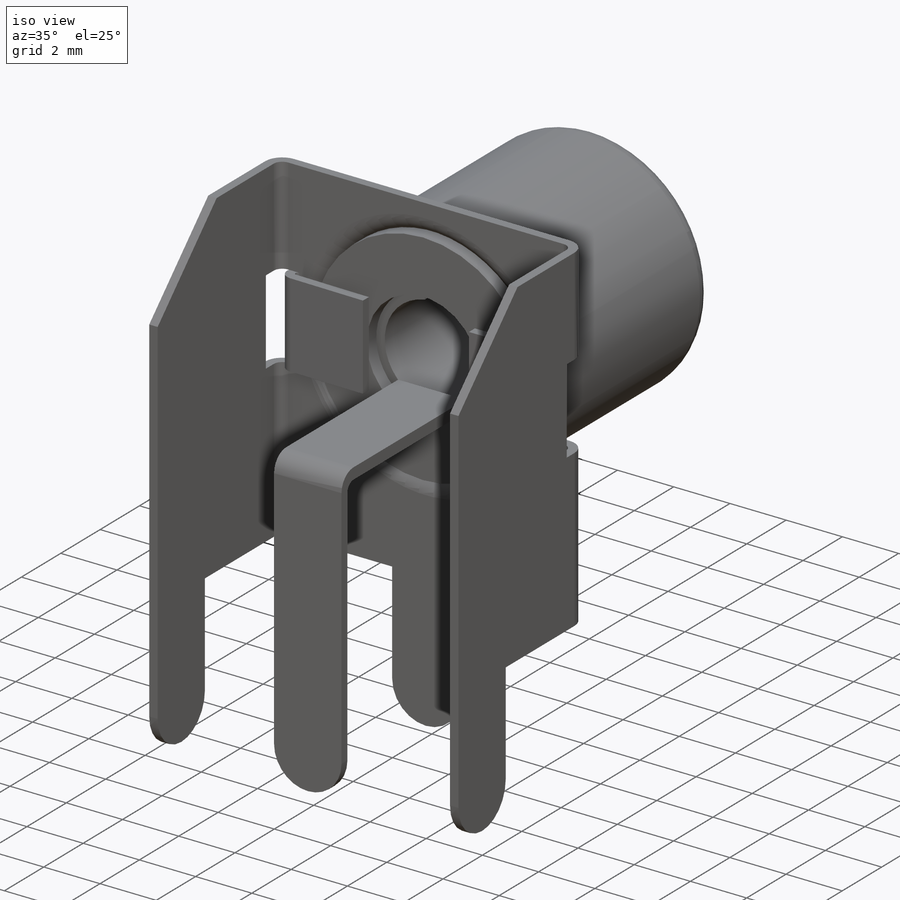
[diagram: iso view]
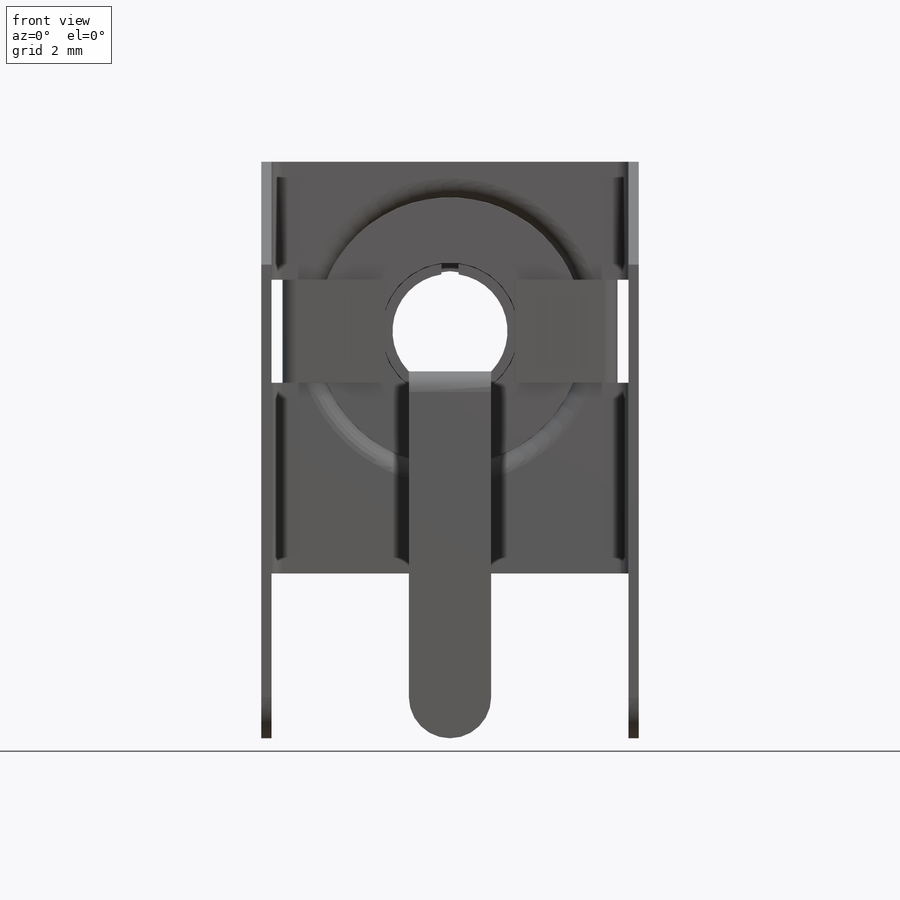
[diagram: front view]
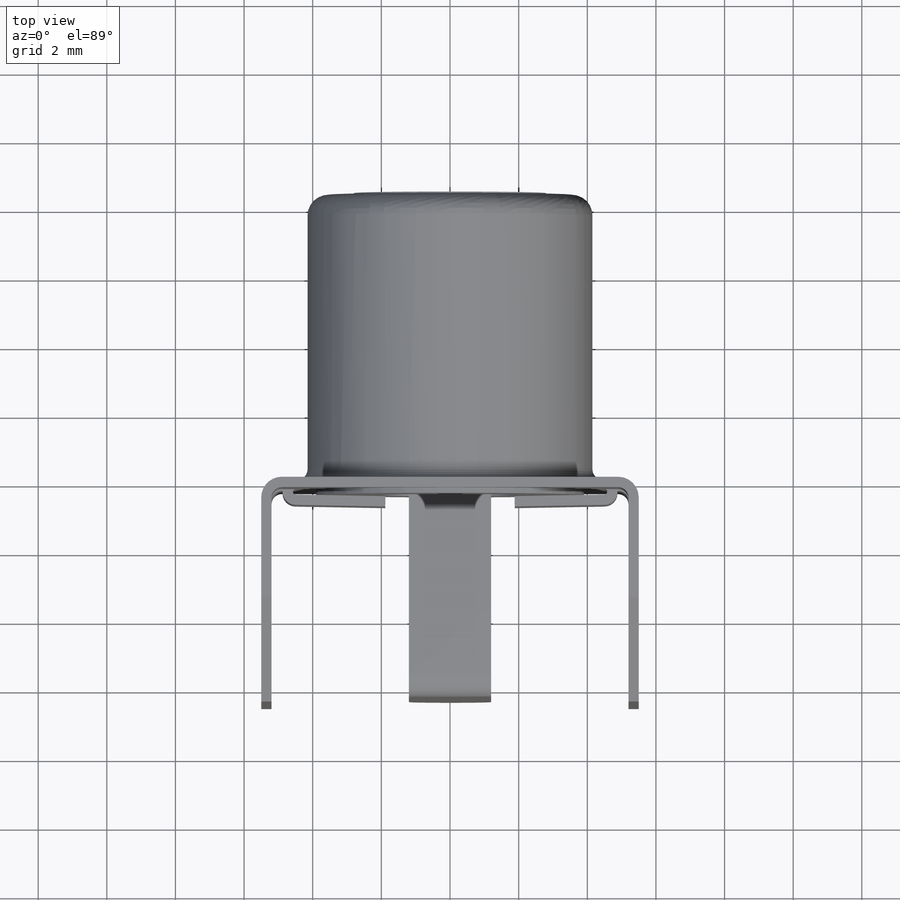
[diagram: top view]
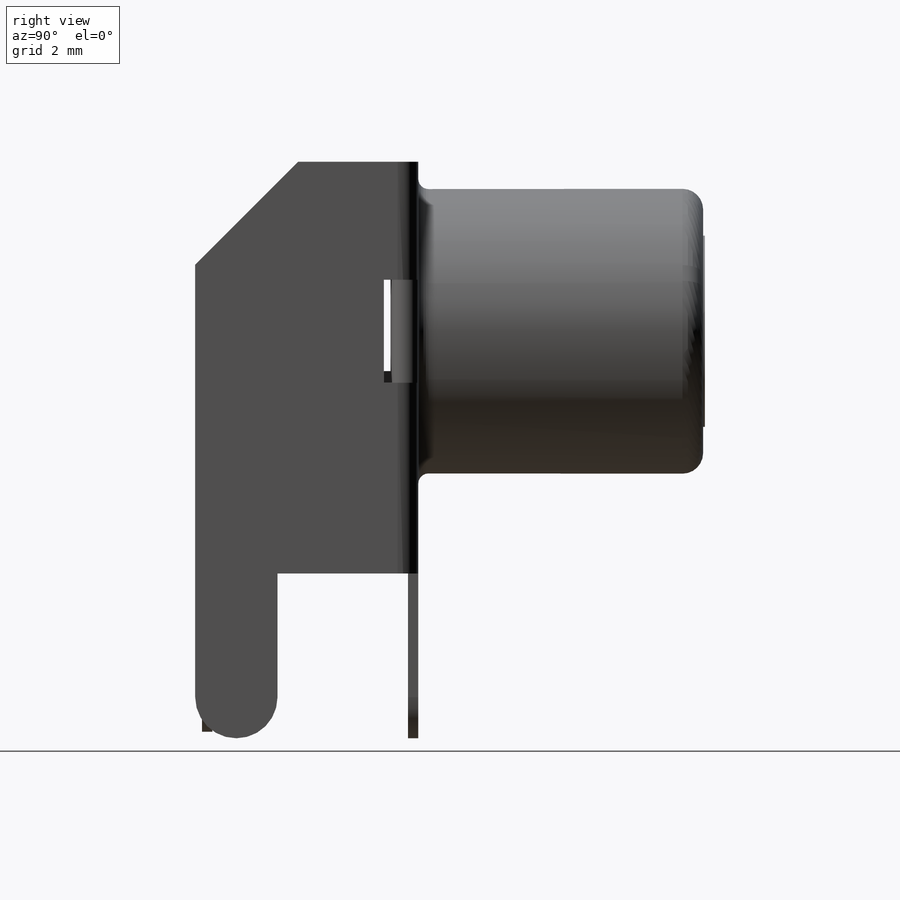
[diagram: right view]
SOLIDWORKS PART (.sldprt)
format: sldprt  version: not decoded by parser v0  size: 899,584 bytes
history: native  units: mm
features: sheet_metal_op x12, revolve x10, chamfer x7, extrude x7, plane x3, fillet x2, mirror x2, material x1, sketch x1, cut_extrude x1 + 33 further entries (+10 scaffold rows collapsed)
feature tree (89):
  scaffold x10  (default folders/planes/origin — collapsed)
  material  "Материал <не указан>"
  plane  "Спереди"
  plane  "Сверху"
  plane  "Справа"
  sketch  "Эскиз1"  dims[c1.D1=11.0mm c1.D2=6.5mm c2.D1=0.3mm c2.D2=0.5 c2.D3=0.0mm c2.D6=500.0mm]
  sheet_metal_op  "Базовая кромка1"
  sheet_metal_op  "Основание2"
  chamfer  "Фаска1"  Distance=3mm Angle=45deg Эскиз6=0
  cut_extrude  "Вырез-Вытянуть1"  Depth=1mm Эскиз7=0
  fillet  "Скругление1"  Radius=0.3mm
  extrude  "Скругление2"  Depth=0.6mm Эскиз8=0
  chamfer  "Бобышка-Вытянуть1"  Distance=0.3mm
  extrude  "Скругление3"  Depth=0.6mm
  extrude  "Скругление4"  Depth=0.3mm Эскиз10=0
  chamfer  "Вырез-Вытянуть5"  Distance=1mm
  mirror  "Зеркальное отражение1"  Эскиз11=0
  chamfer  "Бобышка-Вытянуть2"  Distance=4.8mm
  extrude  "Скругление5"  Depth=1.2mm Эскиз12=0
  revolve  "Повернуть1"  Angle=360deg Эскиз15=0
  fillet  "Зеркальное отражение2"  [1 undecoded]
  mirror  "Зеркальное отражение сгиба1"  Эскиз16=0
  chamfer  "Бобышка-Вытянуть3"  Distance=7.5mm Эскиз17=0
  chamfer  "Бобышка-Вытянуть4"  Distance=6mm Эскиз18=0
  chamfer  "Бобышка-Вытянуть5"  Distance=0.3mm
  extrude  "Скругление6"  Depth=1.2mm
  extrude  "Скругление7"  Depth=0.3mm
  extrude  "Скругление8"  Depth=0.6mm Сгиб-Линии1=0 Граничная рамка1=0
  sheet_metal_op  "Листовой металл1"
  "Развертка1"  Сгиб-Линии2=0 Граничная рамка2=0
  "Преобразование эскиза1"
  "Плоское состояние-<Основание2>1"
  revolve  "Листовой металл2"  [1 undecoded]
  sheet_metal_op  "Развертка1"  Сгиб-Линии2=0 Граничная рамка2=0
  "Преобразование эскиза1"
  "Плоское состояние-<Основание1>1"
  "Плоское состояние-<Основание2>1"
  revolve  "Листовой металл3"  [1 undecoded]
  sheet_metal_op  "Развертка1"  Сгиб-Линии2=0 Граничная рамка2=0
  "Преобразование эскиза1"
  "Плоское состояние-<Основание1>1"
  "Плоское состояние-<Основание2>1"
  revolve  "Листовой металл4"  [1 undecoded]
  sheet_metal_op  "Развертка1"  Сгиб-Линии2=0 Граничная рамка2=0
  "Преобразование эскиза1"
  "Плоское состояние-<Основание1>1"
  "Плоское состояние-<Основание2>1"
  revolve  "Листовой металл5"  [1 undecoded]
  sheet_metal_op  "Развертка1"  Сгиб-Линии2=0 Граничная рамка2=0
  "Преобразование эскиза1"
  "Плоское состояние-<Основание1>1"
  "Плоское состояние-<Основание2>1"
  revolve  "Листовой металл6"  [1 undecoded]
  sheet_metal_op  "Развертка1"  Сгиб-Линии2=0 Граничная рамка2=0
  "Преобразование эскиза1"
  "Плоское состояние-<Основание1>1"
  "Плоское состояние-<Основание2>1"
  revolve  "Листовой металл7"  [1 undecoded]
  sheet_metal_op  "Развертка1"  Сгиб-Линии2=0 Граничная рамка2=0
  "Преобразование эскиза1"
  "Плоское состояние-<Основание1>1"
  "Плоское состояние-<Основание2>1"
  revolve  "Листовой металл8"  [1 undecoded]
  sheet_metal_op  "Развертка1"  Сгиб-Линии2=0 Граничная рамка2=0
  "Преобразование эскиза1"
  "Плоское состояние-<Основание1>1"
  "Плоское состояние-<Основание2>1"
  revolve  "Листовой металл9"  [1 undecoded]
  sheet_metal_op  "Развертка1"  Сгиб-Линии2=0 Граничная рамка2=0
  "Преобразование эскиза1"
  "Плоское состояние-<Основание1>1"
  "Плоское состояние-<Основание2>1"
  "Плоское состояние-<EdgeBend1>1"
  revolve  "Листовой металл10"  [1 undecoded]
  sheet_metal_op  "Развертка1"  Сгиб-Линии2=0 Граничная рамка2=0
  "Преобразование эскиза1"
  "Плоское состояние-<Основание1>1"
  "Плоское состояние-<Основание2>1"
  "Плоское состояние-<EdgeBend1>1"
  "Плоское состояние-<Зеркальное отражение сгиба1>1"
decode coverage: 29 of 42 modeling features carry decoded parameters; 33 rows unclassified (native names shown)
note: 10 parameter values undecoded
summary: no parameter record found for 10 features
note: suppression state not decoded; provenance and decode notes live in map.json
